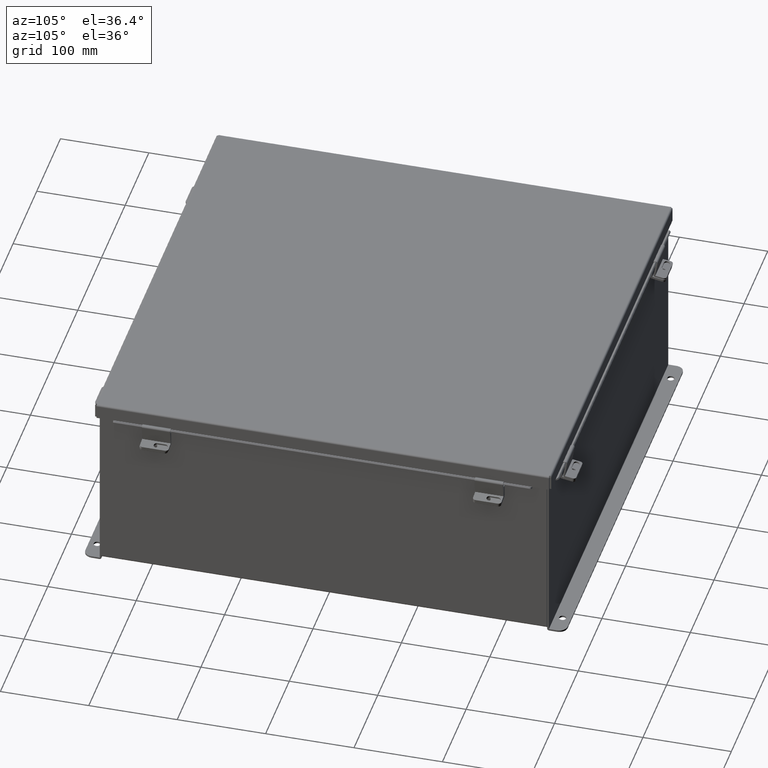
[diagram: clean part render]
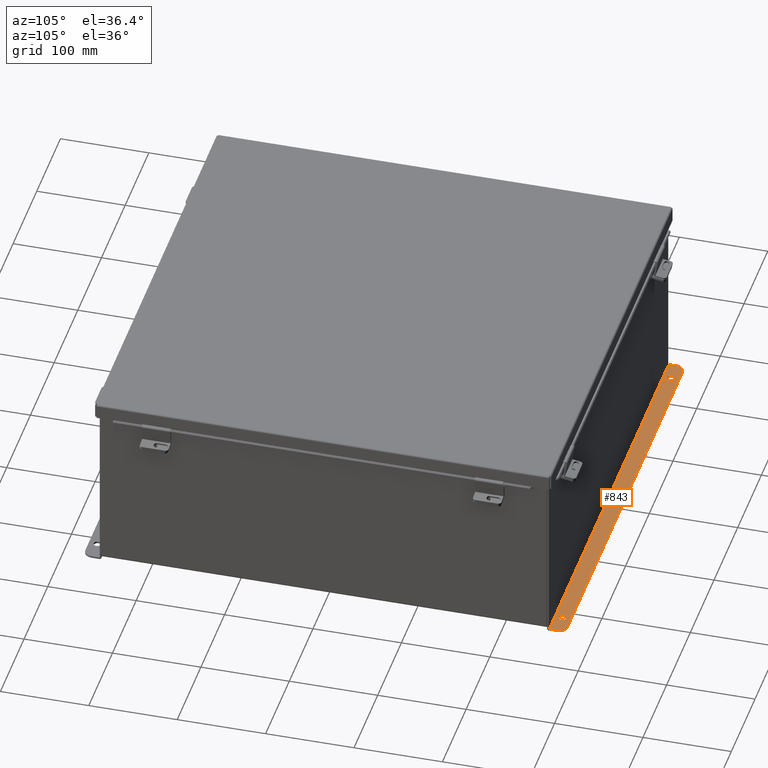
[diagram: same view with one face highlighted and labeled with its STEP entity id]
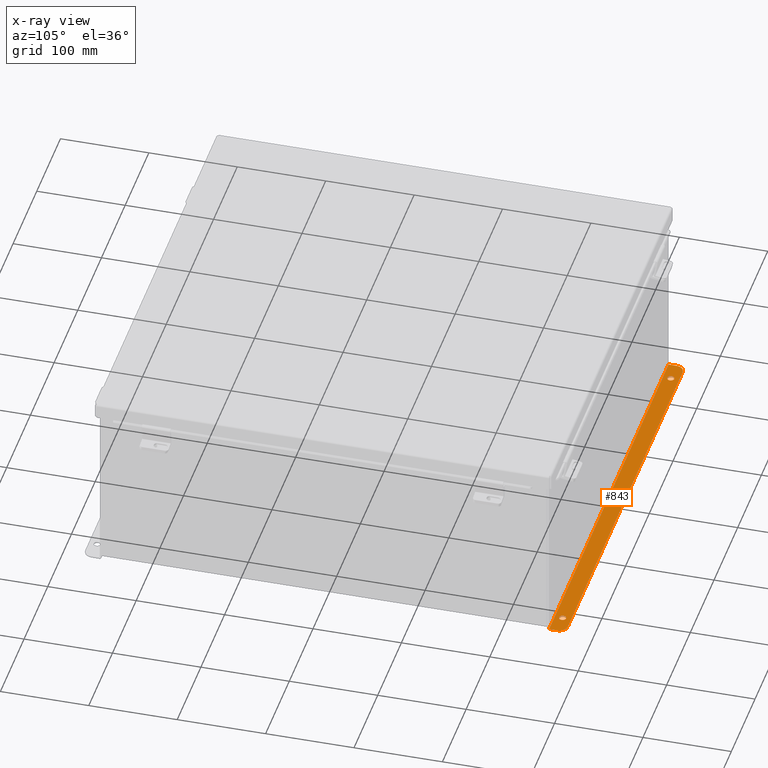
[diagram: x-ray of the same camera — body ghosted, the highlighted face saturated]
A machine part, auxiliary view. The second image highlights one B-rep face of the part: STEP entity #843.
The next image is the same camera in x-ray: the body ghosted, the highlighted face saturated — about 0% of this face is hidden behind the body in this view.
In plain terms, the highlighted planar face has unit normal (0, 0, 1).
Its self-contained STEP definition (entity closure, byte-faithful):
#91 = CARTESIAN_POINT ( 'NONE',  ( 8.987799999999998200, 0.3628000000000008400, -4.112300000000002100 ) ) ;
#220 = CIRCLE ( 'NONE', #5513, 0.3750000000000000600 ) ;
#293 = VERTEX_POINT ( 'NONE', #5086 ) ;
#396 = CARTESIAN_POINT ( 'NONE',  ( -8.987800000000000000, 0.3628000000000008400, -4.112300000000002100 ) ) ;
#406 = VECTOR ( 'NONE', #1308, 39.37007874015748100 ) ;
#482 = ORIENTED_EDGE ( 'NONE', *, *, #518, .T. ) ;
#507 = AXIS2_PLACEMENT_3D ( 'NONE', #7388, #7794, #6753 ) ;
#518 = EDGE_CURVE ( 'NONE', #2383, #7232, #3098, .T. ) ;
#577 = CARTESIAN_POINT ( 'NONE',  ( 9.925299999999998200, 0.7378000000000011200, -4.112300000000003800 ) ) ;
#726 = EDGE_CURVE ( 'NONE', #2820, #7906, #2441, .T. ) ;
#843 = ADVANCED_FACE ( 'NONE', ( #6586, #5537, #3755 ), #5501, .T. ) ;
#877 = DIRECTION ( 'NONE',  ( 0.0000000000000000000, -1.000000000000000000, 3.502369222646487400E-015 ) ) ;
#1308 = DIRECTION ( 'NONE',  ( -1.000000000000000000, -2.752408485047568600E-017, 1.019132772786892100E-031 ) ) ;
#1368 = CARTESIAN_POINT ( 'NONE',  ( -9.550300000000001800, 0.3628000000000008400, -4.112300000000002100 ) ) ;
#1549 = AXIS2_PLACEMENT_3D ( 'NONE', #5765, #4644, #3849 ) ;
#1582 = EDGE_CURVE ( 'NONE', #6409, #9302, #4596, .T. ) ;
#1626 = VERTEX_POINT ( 'NONE', #6978 ) ;
#1748 = ORIENTED_EDGE ( 'NONE', *, *, #1582, .T. ) ;
#2012 = VERTEX_POINT ( 'NONE', #6820 ) ;
#2137 = DIRECTION ( 'NONE',  ( 0.0000000000000000000, -1.000000000000000000, 4.370956789862820400E-015 ) ) ;
#2376 = CIRCLE ( 'NONE', #2660, 0.1560000000000001700 ) ;
#2383 = VERTEX_POINT ( 'NONE', #5272 ) ;
#2441 = CIRCLE ( 'NONE', #9682, 0.3750000000000000600 ) ;
#2481 = ORIENTED_EDGE ( 'NONE', *, *, #3510, .F. ) ;
#2634 = VECTOR ( 'NONE', #9726, 39.37007874015748100 ) ;
#2660 = AXIS2_PLACEMENT_3D ( 'NONE', #91, #5453, #877 ) ;
#2817 = DIRECTION ( 'NONE',  ( 0.0000000000000000000, -1.000000000000000000, 3.502369222646487400E-015 ) ) ;
#2820 = VERTEX_POINT ( 'NONE', #6157 ) ;
#2862 = LINE ( 'NONE', #7067, #3533 ) ;
#3098 = CIRCLE ( 'NONE', #7970, 0.1560000000000001700 ) ;
#3142 = EDGE_LOOP ( 'NONE', ( #1748, #8167 ) ) ;
#3484 = ORIENTED_EDGE ( 'NONE', *, *, #726, .T. ) ;
#3510 = EDGE_CURVE ( 'NONE', #293, #4299, #5764, .T. ) ;
#3533 = VECTOR ( 'NONE', #9481, 39.37007874015748100 ) ;
#3537 = DIRECTION ( 'NONE',  ( -0.0000000000000000000, 1.000000000000000000, -3.702694488566362300E-015 ) ) ;
#3712 = ORIENTED_EDGE ( 'NONE', *, *, #4377, .F. ) ;
#3755 = FACE_OUTER_BOUND ( 'NONE', #9472, .T. ) ;
#3849 = DIRECTION ( 'NONE',  ( 0.0000000000000000000, -1.000000000000000000, 3.702694488566362300E-015 ) ) ;
#4291 = EDGE_LOOP ( 'NONE', ( #482, #7589 ) ) ;
#4299 = VERTEX_POINT ( 'NONE', #8705 ) ;
#4377 = EDGE_CURVE ( 'NONE', #2820, #293, #2862, .T. ) ;
#4578 = CARTESIAN_POINT ( 'NONE',  ( -8.987800000000000000, 0.5188000000000010400, -4.112300000000002100 ) ) ;
#4596 = CIRCLE ( 'NONE', #4624, 0.1560000000000001700 ) ;
#4597 = EDGE_CURVE ( 'NONE', #9302, #6409, #6759, .T. ) ;
#4624 = AXIS2_PLACEMENT_3D ( 'NONE', #396, #7530, #8050 ) ;
#4644 = DIRECTION ( 'NONE',  ( 0.0000000000000000000, 3.702694488566362300E-015, 1.000000000000000000 ) ) ;
#4918 = CARTESIAN_POINT ( 'NONE',  ( 8.987799999999998200, 0.3628000000000008400, -4.112300000000002100 ) ) ;
#5086 = CARTESIAN_POINT ( 'NONE',  ( 9.925299999999998200, 0.01300000000000010700, -4.112300000000001200 ) ) ;
#5166 = EDGE_CURVE ( 'NONE', #4299, #2012, #6533, .T. ) ;
#5234 = CARTESIAN_POINT ( 'NONE',  ( -8.987800000000000000, 0.2068000000000006800, -4.112300000000001200 ) ) ;
#5253 = CARTESIAN_POINT ( 'NONE',  ( 9.925299999999998200, 0.01300000000000010700, -4.112300000000001200 ) ) ;
#5272 = CARTESIAN_POINT ( 'NONE',  ( 8.987799999999998200, 0.5188000000000010400, -4.112300000000002100 ) ) ;
#5453 = DIRECTION ( 'NONE',  ( -0.0000000000000000000, -3.702694488566362300E-015, -1.000000000000000000 ) ) ;
#5476 = CARTESIAN_POINT ( 'NONE',  ( -9.925300000000001800, 0.7378000000000011200, -4.112300000000003800 ) ) ;
#5501 = PLANE ( 'NONE',  #1549 ) ;
#5513 = AXIS2_PLACEMENT_3D ( 'NONE', #1368, #6707, #2137 ) ;
#5537 = FACE_BOUND ( 'NONE', #4291, .T. ) ;
#5764 = LINE ( 'NONE', #5253, #406 ) ;
#5765 = CARTESIAN_POINT ( 'NONE',  ( 0.0000000000000000000, -1.529834876451987200E-014, -4.112300000000001200 ) ) ;
#5821 = VECTOR ( 'NONE', #3537, 39.37007874015748100 ) ;
#6073 = DIRECTION ( 'NONE',  ( 0.0000000000000000000, 3.702694488566362300E-015, 1.000000000000000000 ) ) ;
#6157 = CARTESIAN_POINT ( 'NONE',  ( 9.925299999999998200, 0.3628000000000008400, -4.112300000000002100 ) ) ;
#6308 = EDGE_CURVE ( 'NONE', #1626, #7906, #8679, .T. ) ;
#6409 = VERTEX_POINT ( 'NONE', #4578 ) ;
#6533 = LINE ( 'NONE', #5476, #5821 ) ;
#6586 = FACE_BOUND ( 'NONE', #3142, .T. ) ;
#6707 = DIRECTION ( 'NONE',  ( 0.0000000000000000000, 3.702694488566362300E-015, 1.000000000000000000 ) ) ;
#6746 = DIRECTION ( 'NONE',  ( -0.0000000000000000000, -3.702694488566362300E-015, -1.000000000000000000 ) ) ;
#6753 = DIRECTION ( 'NONE',  ( 0.0000000000000000000, -1.000000000000000000, 3.502369222646487400E-015 ) ) ;
#6759 = CIRCLE ( 'NONE', #507, 0.1560000000000001700 ) ;
#6820 = CARTESIAN_POINT ( 'NONE',  ( -9.925300000000001800, 0.3628000000000008400, -4.112300000000002100 ) ) ;
#6978 = CARTESIAN_POINT ( 'NONE',  ( -9.550300000000001800, 0.7378000000000011200, -4.112300000000003800 ) ) ;
#7067 = CARTESIAN_POINT ( 'NONE',  ( 9.925299999999998200, 0.0000000000000000000, -4.112300000000001200 ) ) ;
#7232 = VERTEX_POINT ( 'NONE', #8503 ) ;
#7388 = CARTESIAN_POINT ( 'NONE',  ( -8.987800000000000000, 0.3628000000000008400, -4.112300000000002100 ) ) ;
#7530 = DIRECTION ( 'NONE',  ( -0.0000000000000000000, -3.702694488566362300E-015, -1.000000000000000000 ) ) ;
#7589 = ORIENTED_EDGE ( 'NONE', *, *, #8095, .T. ) ;
#7638 = ORIENTED_EDGE ( 'NONE', *, *, #5166, .F. ) ;
#7794 = DIRECTION ( 'NONE',  ( -0.0000000000000000000, -3.702694488566362300E-015, -1.000000000000000000 ) ) ;
#7798 = EDGE_CURVE ( 'NONE', #1626, #2012, #220, .T. ) ;
#7906 = VERTEX_POINT ( 'NONE', #9060 ) ;
#7970 = AXIS2_PLACEMENT_3D ( 'NONE', #4918, #6746, #2817 ) ;
#7998 = DIRECTION ( 'NONE',  ( 0.0000000000000000000, -1.000000000000000000, 4.370956789862820400E-015 ) ) ;
#8026 = ORIENTED_EDGE ( 'NONE', *, *, #7798, .T. ) ;
#8050 = DIRECTION ( 'NONE',  ( 0.0000000000000000000, -1.000000000000000000, 3.502369222646487400E-015 ) ) ;
#8095 = EDGE_CURVE ( 'NONE', #7232, #2383, #2376, .T. ) ;
#8167 = ORIENTED_EDGE ( 'NONE', *, *, #4597, .T. ) ;
#8476 = ORIENTED_EDGE ( 'NONE', *, *, #6308, .F. ) ;
#8503 = CARTESIAN_POINT ( 'NONE',  ( 8.987799999999998200, 0.2068000000000006800, -4.112300000000001200 ) ) ;
#8679 = LINE ( 'NONE', #577, #2634 ) ;
#8705 = CARTESIAN_POINT ( 'NONE',  ( -9.925300000000000000, 0.01299999999999792100, -4.112300000000001200 ) ) ;
#8787 = CARTESIAN_POINT ( 'NONE',  ( 9.550299999999998200, 0.3628000000000008400, -4.112300000000002100 ) ) ;
#9060 = CARTESIAN_POINT ( 'NONE',  ( 9.550299999999998200, 0.7378000000000011200, -4.112300000000003800 ) ) ;
#9302 = VERTEX_POINT ( 'NONE', #5234 ) ;
#9472 = EDGE_LOOP ( 'NONE', ( #3712, #3484, #8476, #8026, #7638, #2481 ) ) ;
#9481 = DIRECTION ( 'NONE',  ( -0.0000000000000000000, -1.000000000000000000, 3.702694488566362300E-015 ) ) ;
#9682 = AXIS2_PLACEMENT_3D ( 'NONE', #8787, #6073, #7998 ) ;
#9726 = DIRECTION ( 'NONE',  ( 1.000000000000000000, -0.0000000000000000000, -0.0000000000000000000 ) ) ;